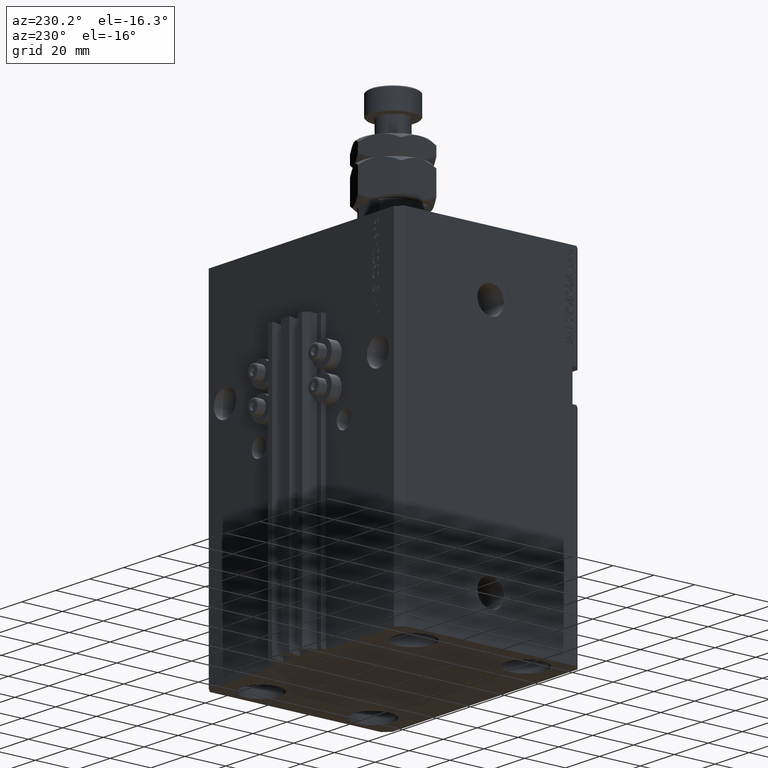
[diagram: clean part render]
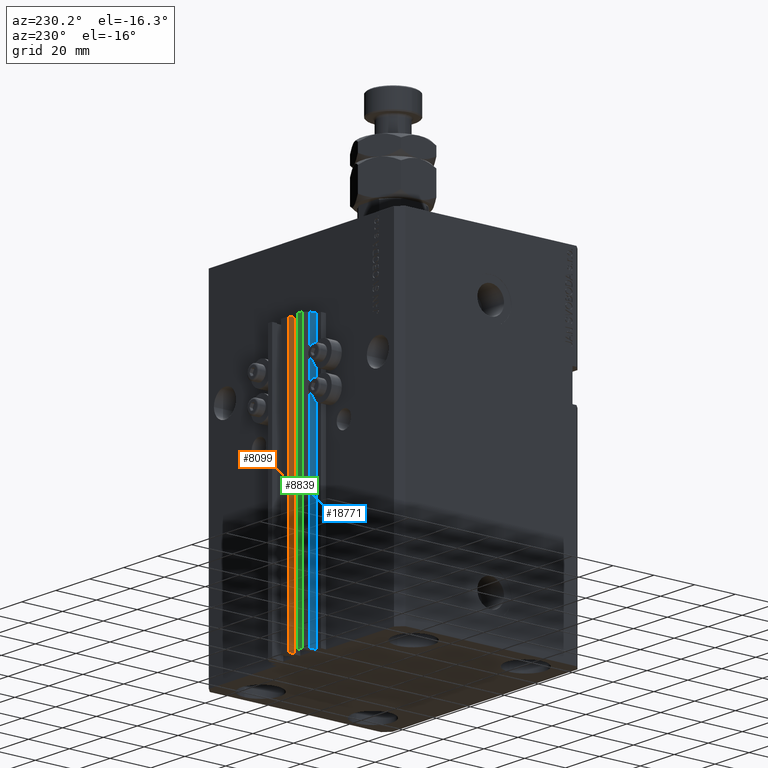
[diagram: same view with three faces highlighted in distinct colors, each labeled with its STEP entity id]
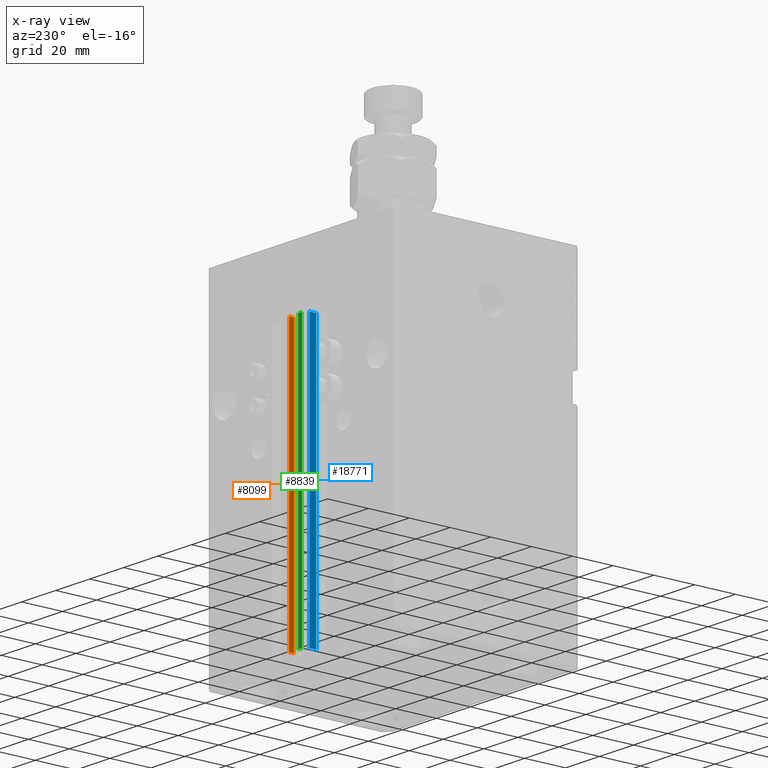
[diagram: x-ray of the same camera — body ghosted, the three highlighted faces saturated]
A machine part, auxiliary view with three faces highlighted in distinct colors.
The next image is the same camera in x-ray (body ghosted, the three faces saturated) — at least one of them is partly hidden behind the body in this view.
Their STEP definitions:

[orange] entity #8099 — the highlighted planar face has unit normal (-1, -0, 0).
#1894 = DIRECTION ( 'NONE',  ( 1.807003620809174632E-16, -1.000000000000000000, 0.000000000000000000 ) ) ;
#2052 = EDGE_LOOP ( 'NONE', ( #23609, #49723, #42797, #38038 ) ) ;
#3781 = LINE ( 'NONE', #42818, #10680 ) ;
#5938 = EDGE_CURVE ( 'NONE', #49797, #33619, #9191, .T. ) ;
#6450 = VECTOR ( 'NONE', #22390, 1000.000000000000000 ) ;
#6967 = VECTOR ( 'NONE', #14364, 1000.000000000000000 ) ;
#8099 = ADVANCED_FACE ( 'NONE', ( #16278 ), #19413, .T. ) ;
#8195 = DIRECTION ( 'NONE',  ( -1.000000000000000000, -1.807003620809174632E-16, 0.000000000000000000 ) ) ;
#9191 = LINE ( 'NONE', #9704, #11842 ) ;
#9704 = CARTESIAN_POINT ( 'NONE',  ( -2.350000000000003642, 53.00000000000000000, -33.00000000000000000 ) ) ;
#10680 = VECTOR ( 'NONE', #17933, 1000.000000000000000 ) ;
#11842 = VECTOR ( 'NONE', #1894, 1000.000000000000000 ) ;
#12364 = DIRECTION ( 'NONE',  ( 1.807003620809174632E-16, -1.000000000000000000, 0.000000000000000000 ) ) ;
#12867 = VERTEX_POINT ( 'NONE', #28501 ) ;
#13512 = CARTESIAN_POINT ( 'NONE',  ( -2.350000000000003197, 50.60000000000000142, -33.00000000000000000 ) ) ;
#14329 = EDGE_CURVE ( 'NONE', #17917, #49797, #41635, .T. ) ;
#14364 = DIRECTION ( 'NONE',  ( 1.807003620809174632E-16, -1.000000000000000000, 0.000000000000000000 ) ) ;
#15670 = CARTESIAN_POINT ( 'NONE',  ( -2.350000000000003642, 53.00000000000000000, -33.00000000000000000 ) ) ;
#16216 = AXIS2_PLACEMENT_3D ( 'NONE', #35801, #8195, #12364 ) ;
#16278 = FACE_OUTER_BOUND ( 'NONE', #2052, .T. ) ;
#17917 = VERTEX_POINT ( 'NONE', #37688 ) ;
#17933 = DIRECTION ( 'NONE',  ( 0.000000000000000000, 0.000000000000000000, 1.000000000000000000 ) ) ;
#17965 = CARTESIAN_POINT ( 'NONE',  ( -2.350000000000003642, 53.00000000000000000, -165.0000000000000000 ) ) ;
#18798 = CARTESIAN_POINT ( 'NONE',  ( -2.350000000000003642, 53.00000000000000000, -165.0000000000000000 ) ) ;
#19413 = PLANE ( 'NONE',  #16216 ) ;
#19789 = EDGE_CURVE ( 'NONE', #12867, #33619, #3781, .T. ) ;
#22390 = DIRECTION ( 'NONE',  ( 0.000000000000000000, 0.000000000000000000, 1.000000000000000000 ) ) ;
#23609 = ORIENTED_EDGE ( 'NONE', *, *, #5938, .F. ) ;
#28501 = CARTESIAN_POINT ( 'NONE',  ( -2.350000000000003197, 50.60000000000000142, -165.0000000000000000 ) ) ;
#33619 = VERTEX_POINT ( 'NONE', #13512 ) ;
#34043 = EDGE_CURVE ( 'NONE', #17917, #12867, #42974, .T. ) ;
#35801 = CARTESIAN_POINT ( 'NONE',  ( -2.350000000000003642, 53.00000000000000000, -165.0000000000000000 ) ) ;
#37688 = CARTESIAN_POINT ( 'NONE',  ( -2.350000000000003642, 53.00000000000000000, -165.0000000000000000 ) ) ;
#38038 = ORIENTED_EDGE ( 'NONE', *, *, #19789, .T. ) ;
#41635 = LINE ( 'NONE', #17965, #6450 ) ;
#42797 = ORIENTED_EDGE ( 'NONE', *, *, #34043, .T. ) ;
#42818 = CARTESIAN_POINT ( 'NONE',  ( -2.350000000000003197, 50.60000000000000142, -165.0000000000000000 ) ) ;
#42974 = LINE ( 'NONE', #18798, #6967 ) ;
#49723 = ORIENTED_EDGE ( 'NONE', *, *, #14329, .F. ) ;
#49797 = VERTEX_POINT ( 'NONE', #15670 ) ;

[blue] entity #18771 — the highlighted planar face has unit normal (-1, 0, 0).
#1618 = VECTOR ( 'NONE', #11922, 1000.000000000000000 ) ;
#4618 = LINE ( 'NONE', #47827, #1618 ) ;
#4986 = DIRECTION ( 'NONE',  ( -1.000000000000000000, 0.000000000000000000, 0.000000000000000000 ) ) ;
#7646 = CARTESIAN_POINT ( 'NONE',  ( -12.00000000000000000, 50.99999999999999289, -165.0000000000000000 ) ) ;
#9081 = CARTESIAN_POINT ( 'NONE',  ( -12.00000000000000000, 50.99999999999999289, -33.00000000000000000 ) ) ;
#10201 = ORIENTED_EDGE ( 'NONE', *, *, #16855, .T. ) ;
#10751 = VECTOR ( 'NONE', #45251, 1000.000000000000000 ) ;
#11922 = DIRECTION ( 'NONE',  ( 0.000000000000000000, -1.000000000000000000, 0.000000000000000000 ) ) ;
#13562 = PLANE ( 'NONE',  #24021 ) ;
#16413 = CARTESIAN_POINT ( 'NONE',  ( -12.00000000000000000, 50.99999999999999289, -33.00000000000000000 ) ) ;
#16855 = EDGE_CURVE ( 'NONE', #46225, #24473, #18743, .T. ) ;
#17277 = VECTOR ( 'NONE', #34609, 1000.000000000000000 ) ;
#18743 = LINE ( 'NONE', #30721, #17277 ) ;
#18771 = ADVANCED_FACE ( 'NONE', ( #25553 ), #13562, .T. ) ;
#19102 = EDGE_CURVE ( 'NONE', #33607, #24473, #21070, .T. ) ;
#20619 = EDGE_CURVE ( 'NONE', #23311, #33607, #49660, .T. ) ;
#20817 = EDGE_CURVE ( 'NONE', #23311, #46225, #4618, .T. ) ;
#21070 = LINE ( 'NONE', #9081, #30654 ) ;
#23311 = VERTEX_POINT ( 'NONE', #7646 ) ;
#24021 = AXIS2_PLACEMENT_3D ( 'NONE', #49458, #4986, #49709 ) ;
#24473 = VERTEX_POINT ( 'NONE', #51175 ) ;
#25553 = FACE_OUTER_BOUND ( 'NONE', #48529, .T. ) ;
#30654 = VECTOR ( 'NONE', #44473, 1000.000000000000000 ) ;
#30721 = CARTESIAN_POINT ( 'NONE',  ( -12.00000000000000000, 47.69999999999999574, -165.0000000000000000 ) ) ;
#33607 = VERTEX_POINT ( 'NONE', #16413 ) ;
#34609 = DIRECTION ( 'NONE',  ( 0.000000000000000000, 0.000000000000000000, 1.000000000000000000 ) ) ;
#38609 = ORIENTED_EDGE ( 'NONE', *, *, #20619, .F. ) ;
#40577 = CARTESIAN_POINT ( 'NONE',  ( -12.00000000000000000, 47.69999999999999574, -165.0000000000000000 ) ) ;
#44473 = DIRECTION ( 'NONE',  ( 0.000000000000000000, -1.000000000000000000, 0.000000000000000000 ) ) ;
#45251 = DIRECTION ( 'NONE',  ( 0.000000000000000000, 0.000000000000000000, 1.000000000000000000 ) ) ;
#45397 = ORIENTED_EDGE ( 'NONE', *, *, #19102, .F. ) ;
#46225 = VERTEX_POINT ( 'NONE', #40577 ) ;
#46360 = ORIENTED_EDGE ( 'NONE', *, *, #20817, .T. ) ;
#47827 = CARTESIAN_POINT ( 'NONE',  ( -12.00000000000000000, 50.99999999999999289, -165.0000000000000000 ) ) ;
#48529 = EDGE_LOOP ( 'NONE', ( #45397, #38609, #46360, #10201 ) ) ;
#48901 = CARTESIAN_POINT ( 'NONE',  ( -12.00000000000000000, 50.99999999999999289, -165.0000000000000000 ) ) ;
#49458 = CARTESIAN_POINT ( 'NONE',  ( -12.00000000000000000, 50.99999999999999289, -165.0000000000000000 ) ) ;
#49660 = LINE ( 'NONE', #48901, #10751 ) ;
#49709 = DIRECTION ( 'NONE',  ( 0.000000000000000000, 0.000000000000000000, 1.000000000000000000 ) ) ;
#51175 = CARTESIAN_POINT ( 'NONE',  ( -12.00000000000000000, 47.69999999999999574, -33.00000000000000000 ) ) ;

[green] entity #8839 — the highlighted planar face has unit normal (0, 1, 0).
#488 = DIRECTION ( 'NONE',  ( 0.000000000000000000, 0.000000000000000000, 1.000000000000000000 ) ) ;
#3309 = CARTESIAN_POINT ( 'NONE',  ( -7.650000000000002132, 52.99999999999999289, -33.00000000000000000 ) ) ;
#3942 = DIRECTION ( 'NONE',  ( 0.000000000000000000, 0.000000000000000000, 1.000000000000000000 ) ) ;
#4343 = LINE ( 'NONE', #3309, #33757 ) ;
#4550 = VERTEX_POINT ( 'NONE', #13277 ) ;
#4700 = VECTOR ( 'NONE', #13657, 1000.000000000000000 ) ;
#5803 = EDGE_LOOP ( 'NONE', ( #40158, #36948, #12786, #8221 ) ) ;
#6393 = EDGE_CURVE ( 'NONE', #4550, #39293, #28359, .T. ) ;
#8221 = ORIENTED_EDGE ( 'NONE', *, *, #43340, .T. ) ;
#8558 = DIRECTION ( 'NONE',  ( -1.000000000000000000, 0.000000000000000000, 0.000000000000000000 ) ) ;
#8839 = ADVANCED_FACE ( 'NONE', ( #28835 ), #12445, .T. ) ;
#9342 = CARTESIAN_POINT ( 'NONE',  ( -10.00000000000000000, 52.99999999999999289, -33.00000000000000000 ) ) ;
#11492 = CARTESIAN_POINT ( 'NONE',  ( -7.650000000000002132, 52.99999999999999289, -165.0000000000000000 ) ) ;
#12445 = PLANE ( 'NONE',  #32896 ) ;
#12674 = VERTEX_POINT ( 'NONE', #9342 ) ;
#12786 = ORIENTED_EDGE ( 'NONE', *, *, #6393, .T. ) ;
#13277 = CARTESIAN_POINT ( 'NONE',  ( -7.650000000000002132, 52.99999999999999289, -165.0000000000000000 ) ) ;
#13600 = CARTESIAN_POINT ( 'NONE',  ( -7.650000000000002132, 52.99999999999999289, -33.00000000000000000 ) ) ;
#13657 = DIRECTION ( 'NONE',  ( 0.000000000000000000, 0.000000000000000000, 1.000000000000000000 ) ) ;
#13984 = VERTEX_POINT ( 'NONE', #13600 ) ;
#16606 = DIRECTION ( 'NONE',  ( 0.000000000000000000, 1.000000000000000000, -0.000000000000000000 ) ) ;
#18082 = CARTESIAN_POINT ( 'NONE',  ( -10.00000000000000000, 52.99999999999999289, -165.0000000000000000 ) ) ;
#27811 = VECTOR ( 'NONE', #8558, 1000.000000000000000 ) ;
#28359 = LINE ( 'NONE', #35663, #27811 ) ;
#28835 = FACE_OUTER_BOUND ( 'NONE', #5803, .T. ) ;
#31089 = VECTOR ( 'NONE', #3942, 1000.000000000000000 ) ;
#32896 = AXIS2_PLACEMENT_3D ( 'NONE', #40284, #16606, #488 ) ;
#33201 = LINE ( 'NONE', #18082, #4700 ) ;
#33757 = VECTOR ( 'NONE', #44658, 1000.000000000000000 ) ;
#34139 = EDGE_CURVE ( 'NONE', #4550, #13984, #48165, .T. ) ;
#35663 = CARTESIAN_POINT ( 'NONE',  ( -7.650000000000002132, 52.99999999999999289, -165.0000000000000000 ) ) ;
#36948 = ORIENTED_EDGE ( 'NONE', *, *, #34139, .F. ) ;
#39293 = VERTEX_POINT ( 'NONE', #49488 ) ;
#40158 = ORIENTED_EDGE ( 'NONE', *, *, #41680, .F. ) ;
#40284 = CARTESIAN_POINT ( 'NONE',  ( -7.650000000000002132, 52.99999999999999289, -165.0000000000000000 ) ) ;
#41680 = EDGE_CURVE ( 'NONE', #13984, #12674, #4343, .T. ) ;
#43340 = EDGE_CURVE ( 'NONE', #39293, #12674, #33201, .T. ) ;
#44658 = DIRECTION ( 'NONE',  ( -1.000000000000000000, 0.000000000000000000, 0.000000000000000000 ) ) ;
#48165 = LINE ( 'NONE', #11492, #31089 ) ;
#49488 = CARTESIAN_POINT ( 'NONE',  ( -10.00000000000000000, 52.99999999999999289, -165.0000000000000000 ) ) ;